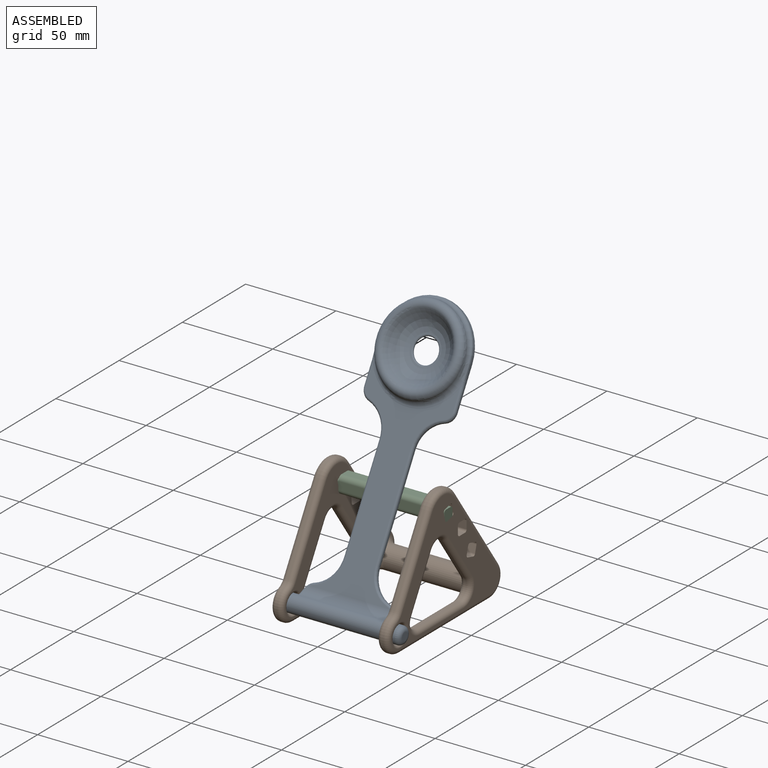
[diagram: assembled view]
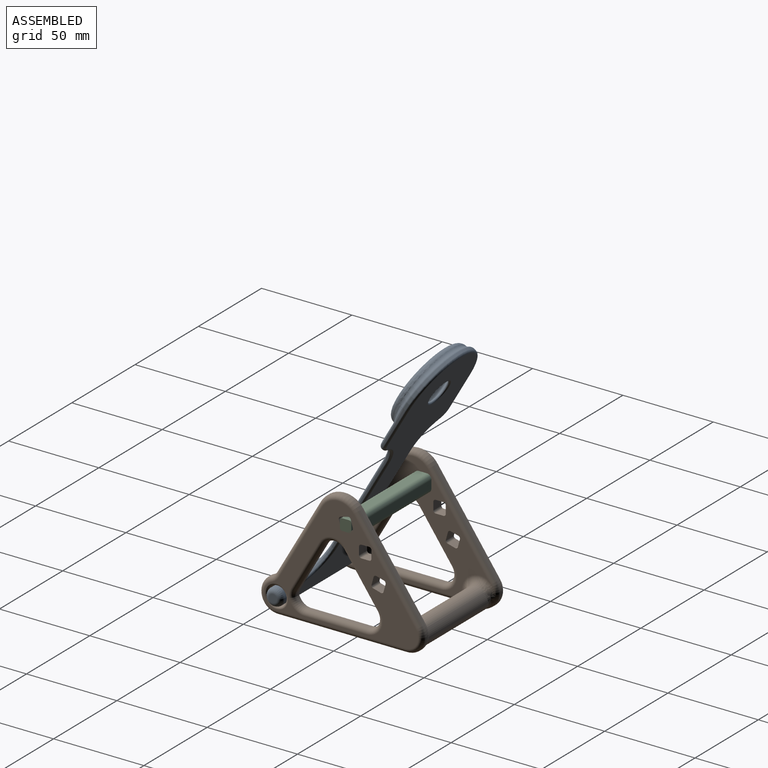
[diagram: assembled view, second angle]
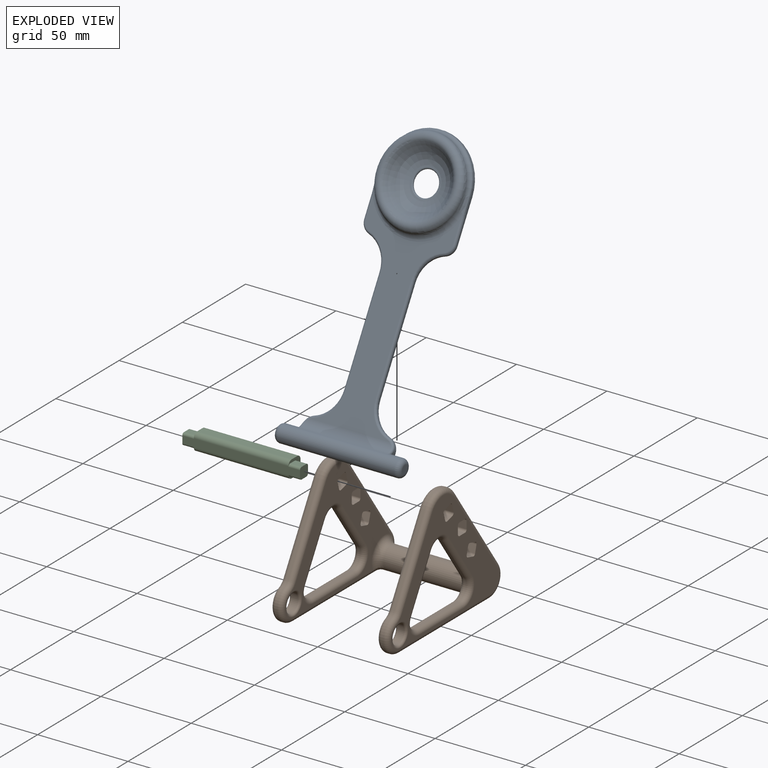
[diagram: exploded view]
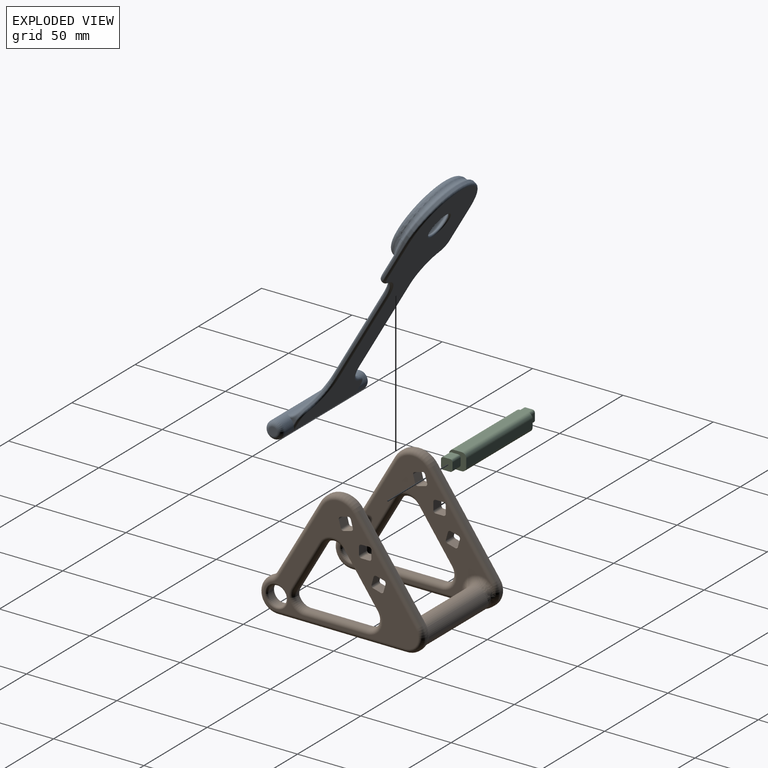
[diagram: exploded view, second angle]
ASSEMBLY  parts=3 mates=2
PART A: 70 faces, bbox 69.9x161x12.7 mm
  f0: plane 104.9x48.26mm, normal (0,0,1), area 1940.5mm2, adj f12,f18,f34,f35,f36,f37,f38,f39
  f1: plane 151.13x48.26mm, normal (0,0,-1), area 4251.3mm2, adj f15,f53,f54,f55,f56,f57,f58,f59
  f2: plane 2.81x2.45mm, normal (1,0,0), area 3.8mm2, adj f15,f28,f52,f67
  f3: plane 2.81x2.45mm, normal (-1,0,0), area 3.8mm2, adj f15,f30,f32,f53
  f4: plane 23.15x1.25mm, normal (-1,0,0), area 19.1mm2, adj f7,f31,f39,f40,f41,f59
  f5: cylinder r=23.81mm len=47.63mm, axis (0,0,1), area 8mm2, adj f10,f11,f13,f14
  f6: plane 23.15x1.25mm, normal (1,0,0), area 19.1mm2, adj f7,f29,f43,f44,f45,f61
  f7: cylinder r=25.4mm len=50.8mm, axis (0,0,-1), area 99.7mm2, adj f4,f6,f42,f60
  f8: torus R=6.75mm, axis (0,0,-1), area 854.3mm2, adj f9,f69
  f9: torus R=26.88mm, axis (0,0,1), area 282.3mm2, adj f8,f10
  f10: torus R=20.64mm, axis (0,0,-1), area 976.8mm2, adj f5,f9,f11,f12,f14
  f11: bspline ~12.09x3.36mm, area 25.9mm2, adj f5,f10,f12,f13,f41
  f12: torus R=26.98mm, axis (0,0,1), area 291.7mm2, adj f0,f10,f11,f14,f40,f44
  f13: torus R=26.99mm, axis (0,0,1), area 207.4mm2, adj f5,f11,f14,f42
  f14: bspline ~11.36x3.36mm, area 25.9mm2, adj f5,f10,f12,f13,f43
  f15: cylinder r=4.76mm len=64.77mm, axis (-1,0,0), area 1459mm2, adj f1,f2,f3,f18,f19,f20,f32,f52
  f16: plane 4.45x4.45mm, normal (1,0,0), area 15.5mm2, adj f20
  f17: plane 4.45x4.45mm, normal (-1,0,0), area 15.5mm2, adj f19
  f18: cylinder r=6.35mm len=48.26mm, axis (-1,0,0), area 336.2mm2, adj f0,f15,f32,f33,f51,f52
  f19: torus R=2.22mm, axis (1,0,0), area 96.3mm2, adj f15,f17
  f20: torus R=2.22mm, axis (1,0,0), area 96.3mm2, adj f15,f16
  f21: plane 55.56x0.64mm, normal (-1,0,0), area 35.3mm2, adj f24,f25,f36,f56
  f22: plane 55.56x0.64mm, normal (1,0,0), area 35.3mm2, adj f26,f27,f48,f64
  f23: cylinder r=6.75mm len=13.51mm, axis (0,0,1), area 1mm2, adj f68,f69
  f24: cylinder r=15.88mm len=15.21mm, axis (0,0,-1), area 12.9mm2, adj f21,f31,f37,f57
  f25: cylinder r=15.88mm len=15.21mm, axis (0,0,-1), area 12.9mm2, adj f21,f30,f35,f55
  f26: cylinder r=15.88mm len=15.21mm, axis (0,0,1), area 12.9mm2, adj f22,f28,f49,f65
  f27: cylinder r=15.88mm len=15.21mm, axis (0,0,-1), area 12.9mm2, adj f22,f29,f47,f63
  f28: cylinder r=6.35mm len=6.09mm, axis (0,0,1), area 7.6mm2, adj f2,f26,f50,f51,f66
  f29: cylinder r=6.35mm len=6.09mm, axis (0,0,-1), area 5.2mm2, adj f6,f27,f46,f62
  f30: cylinder r=6.35mm len=6.09mm, axis (0,0,-1), area 7.6mm2, adj f3,f25,f33,f34,f54
  f31: cylinder r=6.35mm len=6.09mm, axis (0,0,-1), area 5.2mm2, adj f4,f24,f38,f58
  f32: torus R=7.62mm, axis (1,0,0), area 4.6mm2, adj f3,f15,f18,f33
  f33: bspline ~7.43x4.83mm, area 11.1mm2, adj f18,f30,f32,f34
  f34: torus R=5.08mm, axis (0,0,1), area 3mm2, adj f0,f30,f33,f35
  f35: torus R=17.14mm, axis (0,0,1), area 41.7mm2, adj f0,f25,f34,f36
  f36: cylinder r=1.27mm len=55.56mm, axis (0,-1,0), area 110.8mm2, adj f0,f21,f35,f37
  f37: torus R=17.14mm, axis (0,0,1), area 41.7mm2, adj f0,f24,f36,f38
  f38: torus R=5.08mm, axis (0,0,1), area 15mm2, adj f0,f31,f37,f39
  f39: cylinder r=1.27mm len=11.09mm, axis (0,1,0), area 22.1mm2, adj f0,f4,f38,f40
  f40: bspline ~4.58x1.48mm, area 6.1mm2, adj f4,f12,f39,f41
  f41: bspline ~10.72x1.46mm, area 11.2mm2, adj f4,f11,f40,f42
  f42: torus R=24.13mm, axis (0,0,1), area 87.9mm2, adj f7,f13,f41,f43
  f43: bspline ~10.06x1.46mm, area 11.2mm2, adj f6,f14,f42,f44
  f44: bspline ~7.87x1.68mm, area 6.1mm2, adj f6,f12,f43,f45
  f45: cylinder r=1.27mm len=11.09mm, axis (0,-1,0), area 22.1mm2, adj f0,f6,f44,f46
  f46: torus R=5.08mm, axis (0,0,1), area 15mm2, adj f0,f29,f45,f47
  f47: torus R=17.14mm, axis (0,0,1), area 41.7mm2, adj f0,f27,f46,f48
  f48: cylinder r=1.27mm len=55.56mm, axis (0,1,0), area 110.8mm2, adj f0,f22,f47,f49
  f49: torus R=17.14mm, axis (0,0,1), area 41.7mm2, adj f0,f26,f48,f50
  f50: torus R=5.08mm, axis (0,0,1), area 3mm2, adj f0,f28,f49,f51
  f51: bspline ~7.43x4.83mm, area 11.1mm2, adj f18,f28,f50,f52
  f52: torus R=7.62mm, axis (1,0,0), area 4.6mm2, adj f2,f15,f18,f51
  f53: cylinder r=1.27mm len=5.69mm, axis (0,-1,0), area 8.1mm2, adj f1,f3,f15,f54
  f54: torus R=5.08mm, axis (0,0,1), area 15mm2, adj f1,f30,f53,f55
  f55: torus R=17.14mm, axis (0,0,1), area 41.7mm2, adj f1,f25,f54,f56
  f56: cylinder r=1.27mm len=55.56mm, axis (0,1,0), area 110.8mm2, adj f1,f21,f55,f57
  f57: torus R=17.14mm, axis (0,0,1), area 41.7mm2, adj f1,f24,f56,f58
  f58: torus R=5.08mm, axis (0,0,1), area 15mm2, adj f1,f31,f57,f59
  f59: cylinder r=1.27mm len=23.15mm, axis (0,-1,0), area 46.2mm2, adj f1,f4,f58,f60
  f60: torus R=24.13mm, axis (0,0,1), area 156.3mm2, adj f1,f7,f59,f61
  f61: cylinder r=1.27mm len=23.15mm, axis (0,1,0), area 46.2mm2, adj f1,f6,f60,f62
  f62: torus R=5.08mm, axis (0,0,1), area 15mm2, adj f1,f29,f61,f63
  f63: torus R=17.14mm, axis (0,0,1), area 41.7mm2, adj f1,f27,f62,f64
  f64: cylinder r=1.27mm len=55.56mm, axis (0,-1,0), area 110.8mm2, adj f1,f22,f63,f65
  f65: torus R=17.14mm, axis (0,0,1), area 41.7mm2, adj f1,f26,f64,f66
  f66: torus R=5.08mm, axis (0,0,1), area 15mm2, adj f1,f28,f65,f67
  f67: cylinder r=1.27mm len=5.69mm, axis (0,1,0), area 8.1mm2, adj f1,f2,f15,f66
  f68: torus R=7.55mm, axis (0,0,1), area 55.2mm2, adj f1,f23
  f69: torus R=7.55mm, axis (0,0,1), area 53mm2, adj f8,f23
PART B: 159 faces, bbox 65.1x92.2x70.9 mm
  f0: cylinder r=9.53mm len=18.28mm, axis (-1,0,0), area 33.1mm2, adj f1,f55,f96,f135
  f1: plane 71.58x3.81mm, normal (0,0,-1), area 95.5mm2, adj f0,f2,f94,f95,f133
  f2: cylinder r=9.53mm len=15.05mm, axis (-1,0,0), area 40.3mm2, adj f1,f3,f101,f102,f134
  f3: plane 48.65x34.64mm, normal (0,0.81,0.58), area 75.8mm2, adj f2,f61,f100,f136
  f4: plane 6.35x4.32mm, normal (0,1,0), area 27.4mm2, adj f21,f22,f63,f70
  f5: plane 6.35x4.32mm, normal (0,0,-1), area 27.4mm2, adj f21,f22,f63,f64
  f6: plane 6.35x4.32mm, normal (0,-1,0), area 27.4mm2, adj f21,f22,f64,f69
  f7: plane 6.35x4.17mm, normal (0,0.97,0.26), area 27.4mm2, adj f21,f22,f65,f72
  f8: plane 6.35x4.17mm, normal (0,0.26,-0.97), area 27.4mm2, adj f21,f22,f65,f66
  f9: plane 6.35x4.17mm, normal (0,-0.97,-0.26), area 27.4mm2, adj f21,f22,f66,f71
  f10: plane 6.35x4.17mm, normal (0,0.97,-0.26), area 27.4mm2, adj f21,f22,f67,f74
  f11: plane 6.35x4.17mm, normal (0,-0.26,-0.97), area 27.4mm2, adj f21,f22,f67,f68
  f12: plane 6.35x4.17mm, normal (0,-0.97,0.26), area 27.4mm2, adj f21,f22,f68,f73
  f13: plane 27.13x15.66mm, normal (0,0.87,-0.5), area 39.8mm2, adj f51,f53,f92,f128
  f14: plane 25.85x18.41mm, normal (0,-0.81,-0.58), area 40.3mm2, adj f51,f52,f88,f127
  f15: plane 34.28x1.27mm, normal (0,0,1), area 43.5mm2, adj f52,f54,f89,f131
  f16: cylinder r=5.16mm len=10.32mm, axis (-1,0,0), area 123.5mm2, adj f47,f49
  f17: plane 6.35x4.32mm, normal (0,0,1), area 27.4mm2, adj f21,f22,f69,f70
  f18: plane 6.35x4.17mm, normal (0,-0.26,0.97), area 27.4mm2, adj f21,f22,f71,f72
  f19: plane 6.35x4.17mm, normal (0,0.26,0.97), area 27.4mm2, adj f21,f22,f73,f74
  f20: plane 41.73x24.09mm, normal (0,-0.87,0.5), area 61.2mm2, adj f55,f61,f98,f139
  f21: plane 85.55x63.95mm, normal (-1,0,0), area 1513.2mm2, adj f4,f5,f6,f7,f8,f9,f10,f11
  f22: plane 82.84x63.95mm, normal (1,0,0), area 1316.8mm2, adj f4,f5,f6,f7,f8,f9,f10,f11
  f23: cylinder r=5.16mm len=10.32mm, axis (-1,0,0), area 123.5mm2, adj f48,f50
  f24: plane 6.35x4.32mm, normal (0,0,1), area 27.4mm2, adj f39,f45,f85,f86
  f25: plane 6.35x4.32mm, normal (0,-1,0), area 27.4mm2, adj f39,f45,f84,f85
  f26: plane 6.35x4.32mm, normal (0,0,-1), area 27.4mm2, adj f39,f45,f83,f84
  f27: plane 6.35x4.32mm, normal (0,1,0), area 27.4mm2, adj f39,f45,f83,f86
  f28: plane 6.35x4.17mm, normal (0,-0.26,0.97), area 27.4mm2, adj f39,f45,f81,f82
  f29: plane 6.35x4.17mm, normal (0,-0.97,-0.26), area 27.4mm2, adj f39,f45,f80,f81
  f30: plane 6.35x4.17mm, normal (0,0.26,-0.97), area 27.4mm2, adj f39,f45,f79,f80
  f31: plane 6.35x4.17mm, normal (0,0.97,0.26), area 27.4mm2, adj f39,f45,f79,f82
  f32: plane 6.35x4.17mm, normal (0,0.26,0.97), area 27.4mm2, adj f39,f45,f77,f78
  f33: plane 6.35x4.17mm, normal (0,-0.97,0.26), area 27.4mm2, adj f39,f45,f76,f77
  f34: plane 6.35x4.17mm, normal (0,-0.26,-0.97), area 27.4mm2, adj f39,f45,f75,f76
  f35: plane 6.35x4.17mm, normal (0,0.97,-0.26), area 27.4mm2, adj f39,f45,f75,f78
  f36: plane 34.28x1.27mm, normal (0,0,1), area 43.5mm2, adj f57,f59,f116,f124
  f37: plane 25.85x18.41mm, normal (0,-0.81,-0.58), area 40.3mm2, adj f56,f57,f112,f120
  f38: plane 27.13x15.66mm, normal (0,0.87,-0.5), area 39.8mm2, adj f56,f58,f115,f121
  f39: plane 85.55x63.95mm, normal (1,0,0), area 1513.2mm2, adj f24,f25,f26,f27,f28,f29,f30,f31
  f40: plane 41.73x24.09mm, normal (0,-0.87,0.5), area 61.2mm2, adj f60,f62,f107,f146
  f41: plane 48.65x34.64mm, normal (0,0.81,0.58), area 75.8mm2, adj f42,f62,f109,f143
  f42: cylinder r=9.53mm len=15.05mm, axis (-1,0,0), area 40.3mm2, adj f41,f43,f110,f111,f141
  f43: plane 71.58x3.81mm, normal (0,0,-1), area 95.5mm2, adj f42,f44,f103,f104,f140
  f44: cylinder r=9.53mm len=18.28mm, axis (-1,0,0), area 33.1mm2, adj f43,f60,f105,f142
  f45: plane 82.84x63.95mm, normal (-1,0,0), area 1316.8mm2, adj f24,f25,f26,f27,f28,f29,f30,f31
  f46: cylinder r=6.35mm len=52.39mm, axis (-1,0,0), area 1875.3mm2, adj f147,f148,f149,f150,f151,f152,f153,f154
  f47: torus R=6.43mm, axis (1,0,0), area 70.5mm2, adj f16,f22
  f48: torus R=6.43mm, axis (1,0,0), area 70.5mm2, adj f23,f45
  f49: torus R=6.43mm, axis (1,0,0), area 70.5mm2, adj f16,f21
  f50: torus R=6.43mm, axis (1,0,0), area 70.5mm2, adj f23,f39
  f51: cylinder r=6.35mm len=10.67mm, axis (1,0,0), area 16.1mm2, adj f13,f14,f90,f126
  f52: cylinder r=6.35mm len=10.03mm, axis (-1,0,0), area 17.7mm2, adj f14,f15,f87,f129
  f53: cylinder r=6.35mm len=3.55mm, axis (-1,0,0), area 4.7mm2, adj f13,f54,f93,f130
  f54: cylinder r=6.35mm len=6.13mm, axis (-1,0,0), area 10.5mm2, adj f15,f53,f91,f132
  f55: cylinder r=6.35mm len=3.01mm, axis (-1,0,0), area 5.2mm2, adj f0,f20,f97,f137
  f56: cylinder r=6.35mm len=10.67mm, axis (1,0,0), area 16.1mm2, adj f37,f38,f113,f119
  f57: cylinder r=6.35mm len=10.03mm, axis (-1,0,0), area 17.7mm2, adj f36,f37,f114,f122
  f58: cylinder r=6.35mm len=3.55mm, axis (-1,0,0), area 4.7mm2, adj f38,f59,f117,f123
  f59: cylinder r=6.35mm len=6.13mm, axis (-1,0,0), area 10.5mm2, adj f36,f58,f118,f125
  f60: cylinder r=6.35mm len=3.01mm, axis (-1,0,0), area 5.2mm2, adj f40,f44,f106,f144
  f61: cylinder r=12.7mm len=21.34mm, axis (-1,0,0), area 32.2mm2, adj f3,f20,f99,f138
  f62: cylinder r=12.7mm len=21.34mm, axis (-1,0,0), area 32.2mm2, adj f40,f41,f108,f145
  f63: cylinder r=1.27mm len=6.35mm, axis (-1,0,0), area 12.7mm2, adj f4,f5,f21,f22
  f64: cylinder r=1.27mm len=6.35mm, axis (1,0,0), area 12.7mm2, adj f5,f6,f21,f22
  f65: cylinder r=1.27mm len=6.35mm, axis (-1,0,0), area 12.7mm2, adj f7,f8,f21,f22
  f66: cylinder r=1.27mm len=6.35mm, axis (1,0,0), area 12.7mm2, adj f8,f9,f21,f22
  f67: cylinder r=1.27mm len=6.35mm, axis (-1,0,0), area 12.7mm2, adj f10,f11,f21,f22
  f68: cylinder r=1.27mm len=6.35mm, axis (1,0,0), area 12.7mm2, adj f11,f12,f21,f22
  f69: cylinder r=1.27mm len=6.35mm, axis (-1,0,0), area 12.7mm2, adj f6,f17,f21,f22
  f70: cylinder r=1.27mm len=6.35mm, axis (1,0,0), area 12.7mm2, adj f4,f17,f21,f22
  f71: cylinder r=1.27mm len=6.35mm, axis (-1,0,0), area 12.7mm2, adj f9,f18,f21,f22
  f72: cylinder r=1.27mm len=6.35mm, axis (1,0,0), area 12.7mm2, adj f7,f18,f21,f22
  f73: cylinder r=1.27mm len=6.35mm, axis (-1,0,0), area 12.7mm2, adj f12,f19,f21,f22
  f74: cylinder r=1.27mm len=6.35mm, axis (1,0,0), area 12.7mm2, adj f10,f19,f21,f22
  f75: cylinder r=1.27mm len=6.35mm, axis (-1,0,0), area 12.7mm2, adj f34,f35,f39,f45
  f76: cylinder r=1.27mm len=6.35mm, axis (1,0,0), area 12.7mm2, adj f33,f34,f39,f45
  f77: cylinder r=1.27mm len=6.35mm, axis (-1,0,0), area 12.7mm2, adj f32,f33,f39,f45
  f78: cylinder r=1.27mm len=6.35mm, axis (1,0,0), area 12.7mm2, adj f32,f35,f39,f45
  f79: cylinder r=1.27mm len=6.35mm, axis (-1,0,0), area 12.7mm2, adj f30,f31,f39,f45
  f80: cylinder r=1.27mm len=6.35mm, axis (1,0,0), area 12.7mm2, adj f29,f30,f39,f45
  f81: cylinder r=1.27mm len=6.35mm, axis (-1,0,0), area 12.7mm2, adj f28,f29,f39,f45
  f82: cylinder r=1.27mm len=6.35mm, axis (1,0,0), area 12.7mm2, adj f28,f31,f39,f45
  f83: cylinder r=1.27mm len=6.35mm, axis (-1,0,0), area 12.7mm2, adj f26,f27,f39,f45
  f84: cylinder r=1.27mm len=6.35mm, axis (1,0,0), area 12.7mm2, adj f25,f26,f39,f45
  f85: cylinder r=1.27mm len=6.35mm, axis (-1,0,0), area 12.7mm2, adj f24,f25,f39,f45
  f86: cylinder r=1.27mm len=6.35mm, axis (1,0,0), area 12.7mm2, adj f24,f27,f39,f45
  f87: torus R=8.89mm, axis (1,0,0), area 63.5mm2, adj f22,f52,f88,f89
  f88: cylinder r=2.54mm len=27.33mm, axis (0,-0.58,0.81), area 126.6mm2, adj f14,f22,f87,f90
  f89: cylinder r=2.54mm len=34.28mm, axis (0,1,0), area 136.8mm2, adj f15,f22,f87,f91
  f90: torus R=8.89mm, axis (1,0,0), area 58mm2, adj f22,f51,f88,f92
  f91: torus R=8.89mm, axis (1,0,0), area 38.4mm2, adj f22,f54,f89,f93
  f92: cylinder r=2.54mm len=28.4mm, axis (0,-0.5,-0.87), area 125mm2, adj f13,f22,f90,f93
  f93: torus R=8.89mm, axis (1,0,0), area 17.3mm2, adj f22,f53,f91,f92
  f94: bspline ~5.08x2.54mm, area 5.7mm2, adj f1,f95,f158
  f95: cylinder r=2.54mm len=66.5mm, axis (0,-1,0), area 260.4mm2, adj f1,f22,f94,f96,f157
  f96: torus R=6.99mm, axis (1,0,0), area 94mm2, adj f0,f22,f95,f97
  f97: torus R=8.89mm, axis (1,0,0), area 18.7mm2, adj f22,f55,f96,f98
  f98: cylinder r=2.54mm len=43mm, axis (0,0.5,0.87), area 192.3mm2, adj f20,f22,f97,f99
  f99: torus R=10.16mm, axis (1,0,0), area 93.9mm2, adj f22,f61,f98,f100
  f100: cylinder r=2.54mm len=50.12mm, axis (0,0.58,-0.81), area 237.8mm2, adj f3,f22,f99,f101,f155
  f101: torus R=6.99mm, axis (1,0,0), area 27.4mm2, adj f2,f100,f102,f154
  f102: bspline ~9.03x7.23mm, area 8.2mm2, adj f2,f101,f153
  f103: bspline ~5.3x2.66mm, area 5.7mm2, adj f43,f104,f152
  f104: cylinder r=2.54mm len=66.5mm, axis (0,1,0), area 260.4mm2, adj f43,f45,f103,f105,f151
  f105: torus R=6.99mm, axis (1,0,0), area 94mm2, adj f44,f45,f104,f106
  f106: torus R=8.89mm, axis (1,0,0), area 18.7mm2, adj f45,f60,f105,f107
  f107: cylinder r=2.54mm len=43mm, axis (0,-0.5,-0.87), area 192.3mm2, adj f40,f45,f106,f108
  f108: torus R=10.16mm, axis (1,0,0), area 93.9mm2, adj f45,f62,f107,f109
  f109: cylinder r=2.54mm len=50.12mm, axis (0,-0.58,0.81), area 237.8mm2, adj f41,f45,f108,f110,f149
  f110: torus R=6.99mm, axis (1,0,0), area 27.4mm2, adj f42,f109,f111,f148
  f111: bspline ~9.03x7.23mm, area 8.2mm2, adj f42,f110,f147
  f112: cylinder r=2.54mm len=27.33mm, axis (0,-0.58,0.81), area 126.6mm2, adj f37,f39,f113,f114
  f113: torus R=8.89mm, axis (1,0,0), area 58mm2, adj f39,f56,f112,f115
  f114: torus R=8.89mm, axis (1,0,0), area 63.5mm2, adj f39,f57,f112,f116
  f115: cylinder r=2.54mm len=28.4mm, axis (0,-0.5,-0.87), area 125mm2, adj f38,f39,f113,f117
  f116: cylinder r=2.54mm len=34.28mm, axis (0,1,0), area 136.8mm2, adj f36,f39,f114,f118
  f117: torus R=8.89mm, axis (1,0,0), area 17.3mm2, adj f39,f58,f115,f118
  f118: torus R=8.89mm, axis (1,0,0), area 38.4mm2, adj f39,f59,f116,f117
  f119: torus R=8.89mm, axis (1,0,0), area 58mm2, adj f45,f56,f120,f121
  f120: cylinder r=2.54mm len=27.33mm, axis (0,0.58,-0.81), area 126.6mm2, adj f37,f45,f119,f122
  f121: cylinder r=2.54mm len=28.4mm, axis (0,0.5,0.87), area 125mm2, adj f38,f45,f119,f123
  f122: torus R=8.89mm, axis (1,0,0), area 63.5mm2, adj f45,f57,f120,f124
  f123: torus R=8.89mm, axis (1,0,0), area 17.3mm2, adj f45,f58,f121,f125
  f124: cylinder r=2.54mm len=34.28mm, axis (0,-1,0), area 136.8mm2, adj f36,f45,f122,f125
  f125: torus R=8.89mm, axis (1,0,0), area 38.4mm2, adj f45,f59,f123,f124
  f126: torus R=8.89mm, axis (1,0,0), area 58mm2, adj f21,f51,f127,f128
  f127: cylinder r=2.54mm len=27.33mm, axis (0,0.58,-0.81), area 126.6mm2, adj f14,f21,f126,f129
  f128: cylinder r=2.54mm len=28.4mm, axis (0,0.5,0.87), area 125mm2, adj f13,f21,f126,f130
  f129: torus R=8.89mm, axis (1,0,0), area 63.5mm2, adj f21,f52,f127,f131
  f130: torus R=8.89mm, axis (1,0,0), area 17.3mm2, adj f21,f53,f128,f132
  f131: cylinder r=2.54mm len=34.28mm, axis (0,-1,0), area 136.8mm2, adj f15,f21,f129,f132
  f132: torus R=8.89mm, axis (1,0,0), area 38.4mm2, adj f21,f54,f130,f131
  f133: cylinder r=2.54mm len=71.58mm, axis (0,1,0), area 285.6mm2, adj f1,f21,f134,f135
  f134: torus R=6.99mm, axis (1,0,0), area 75.1mm2, adj f2,f21,f133,f136
  f135: torus R=6.99mm, axis (1,0,0), area 94mm2, adj f0,f21,f133,f137
  f136: cylinder r=2.54mm len=50.12mm, axis (0,-0.58,0.81), area 238.3mm2, adj f3,f21,f134,f138
  f137: torus R=8.89mm, axis (1,0,0), area 18.7mm2, adj f21,f55,f135,f139
  f138: torus R=10.16mm, axis (1,0,0), area 93.9mm2, adj f21,f61,f136,f139
  f139: cylinder r=2.54mm len=43mm, axis (0,-0.5,-0.87), area 192.3mm2, adj f20,f21,f137,f138
  f140: cylinder r=2.54mm len=71.58mm, axis (0,-1,0), area 285.6mm2, adj f39,f43,f141,f142
  f141: torus R=6.99mm, axis (1,0,0), area 75.1mm2, adj f39,f42,f140,f143
  f142: torus R=6.99mm, axis (1,0,0), area 94mm2, adj f39,f44,f140,f144
  f143: cylinder r=2.54mm len=50.12mm, axis (0,0.58,-0.81), area 238.3mm2, adj f39,f41,f141,f145
  f144: torus R=8.89mm, axis (1,0,0), area 18.7mm2, adj f39,f60,f142,f146
  f145: torus R=10.16mm, axis (1,0,0), area 93.9mm2, adj f39,f62,f143,f146
  f146: cylinder r=2.54mm len=43mm, axis (0,0.5,0.87), area 192.3mm2, adj f39,f40,f144,f145
  f147: bspline ~7.83x5.92mm, area 16.5mm2, adj f46,f111,f148
  f148: bspline ~10.94x5.12mm, area 31.8mm2, adj f46,f110,f147,f149
  f149: bspline ~5.41x4.66mm, area 10.7mm2, adj f46,f109,f148,f150
  f150: torus R=10.16mm, axis (1,0,0), area 110.6mm2, adj f45,f46,f149,f151
  f151: bspline ~6.83x4.86mm, area 19.6mm2, adj f46,f104,f150,f152
  f152: bspline ~5.08x2.37mm, area 4.7mm2, adj f46,f103,f151
  f153: bspline ~8.06x6.81mm, area 16.5mm2, adj f46,f102,f154
  f154: bspline ~10.06x5.31mm, area 31.8mm2, adj f46,f101,f153,f155
  f155: bspline ~5.41x4.61mm, area 10.7mm2, adj f46,f100,f154,f156
  f156: torus R=10.16mm, axis (1,0,0), area 110.6mm2, adj f22,f46,f155,f157
  f157: bspline ~6.83x4.86mm, area 19.6mm2, adj f46,f95,f156,f158
  f158: bspline ~5.08x2.36mm, area 5.2mm2, adj f46,f94,f157
PART C: 26 faces, bbox 65.1x9.5x9.5 mm
  f0: plane 9.53x9.53mm, normal (1,0,0), area 46.2mm2, adj f2,f3,f4,f5,f10,f11,f12,f14
  f1: plane 9.53x9.53mm, normal (-1,0,0), area 46.2mm2, adj f2,f3,f4,f5,f7,f8,f9,f14
  f2: plane 52.39x4.45mm, normal (0,0,1), area 232.9mm2, adj f0,f1,f14,f17
  f3: plane 52.39x4.45mm, normal (0,-1,0), area 232.9mm2, adj f0,f1,f14,f15
  f4: plane 65.09x4.45mm, normal (0,0,-1), area 281.2mm2, adj f0,f1,f6,f13,f15,f16,f18,f19
  f5: plane 52.39x4.45mm, normal (0,1,0), area 232.9mm2, adj f0,f1,f16,f17
  f6: plane 6.35x6.35mm, normal (-1,0,0), area 38.9mm2, adj f4,f7,f8,f9,f19,f21,f22,f23
  f7: plane 6.35x3.81mm, normal (0,-1,0), area 24.2mm2, adj f1,f6,f21,f22
  f8: plane 6.35x3.81mm, normal (0,1,0), area 24.2mm2, adj f1,f6,f19,f23
  f9: plane 6.35x3.81mm, normal (0,0,1), area 24.2mm2, adj f1,f6,f22,f23
  f10: plane 6.35x3.81mm, normal (0,0,1), area 24.2mm2, adj f0,f13,f24,f25
  f11: plane 6.35x3.81mm, normal (0,-1,0), area 24.2mm2, adj f0,f13,f20,f24
  f12: plane 6.35x3.81mm, normal (0,1,0), area 24.2mm2, adj f0,f13,f18,f25
  f13: plane 6.35x6.35mm, normal (1,0,0), area 38.9mm2, adj f4,f10,f11,f12,f18,f20,f24,f25
  f14: cylinder r=2.54mm len=52.39mm, axis (1,0,0), area 209mm2, adj f0,f1,f2,f3
  f15: cylinder r=2.54mm len=52.39mm, axis (-1,0,0), area 209mm2, adj f0,f1,f3,f4
  f16: cylinder r=2.54mm len=52.39mm, axis (1,0,0), area 209mm2, adj f0,f1,f4,f5
  f17: cylinder r=2.54mm len=52.39mm, axis (-1,0,0), area 209mm2, adj f0,f1,f2,f5
  f18: cylinder r=1.27mm len=6.35mm, axis (1,0,0), area 12.7mm2, adj f0,f4,f12,f13
  f19: cylinder r=1.27mm len=6.35mm, axis (1,0,0), area 12.7mm2, adj f1,f4,f6,f8
  f20: cylinder r=1.27mm len=6.35mm, axis (1,0,0), area 12.7mm2, adj f0,f4,f11,f13
  f21: cylinder r=1.27mm len=6.35mm, axis (1,0,0), area 12.7mm2, adj f1,f4,f6,f7
  f22: cylinder r=1.27mm len=6.35mm, axis (1,0,0), area 12.7mm2, adj f1,f6,f7,f9
  f23: cylinder r=1.27mm len=6.35mm, axis (-1,0,0), area 12.7mm2, adj f1,f6,f8,f9
  f24: cylinder r=1.27mm len=6.35mm, axis (1,0,0), area 12.7mm2, adj f0,f10,f11,f13
  f25: cylinder r=1.27mm len=6.35mm, axis (-1,0,0), area 12.7mm2, adj f0,f10,f12,f13
PLACE A rot(axis=(0,-0.5,0.87),180deg) t=(56.2,77.84,158.07)mm
PLACE B t=(55.88,46.01,40.94)mm
PLACE C rot(axis=(-1,0,0),90deg) t=(55.88,50.1,96.13)mm
MATE revolute A.f15 <-> B.f0  axis (-1,0,0) through (21.27,10.21,50.47)mm
MATE planar C.f13 <-> B.f39  axis (1,0,0) through (88.42,45.34,96.13)mm
